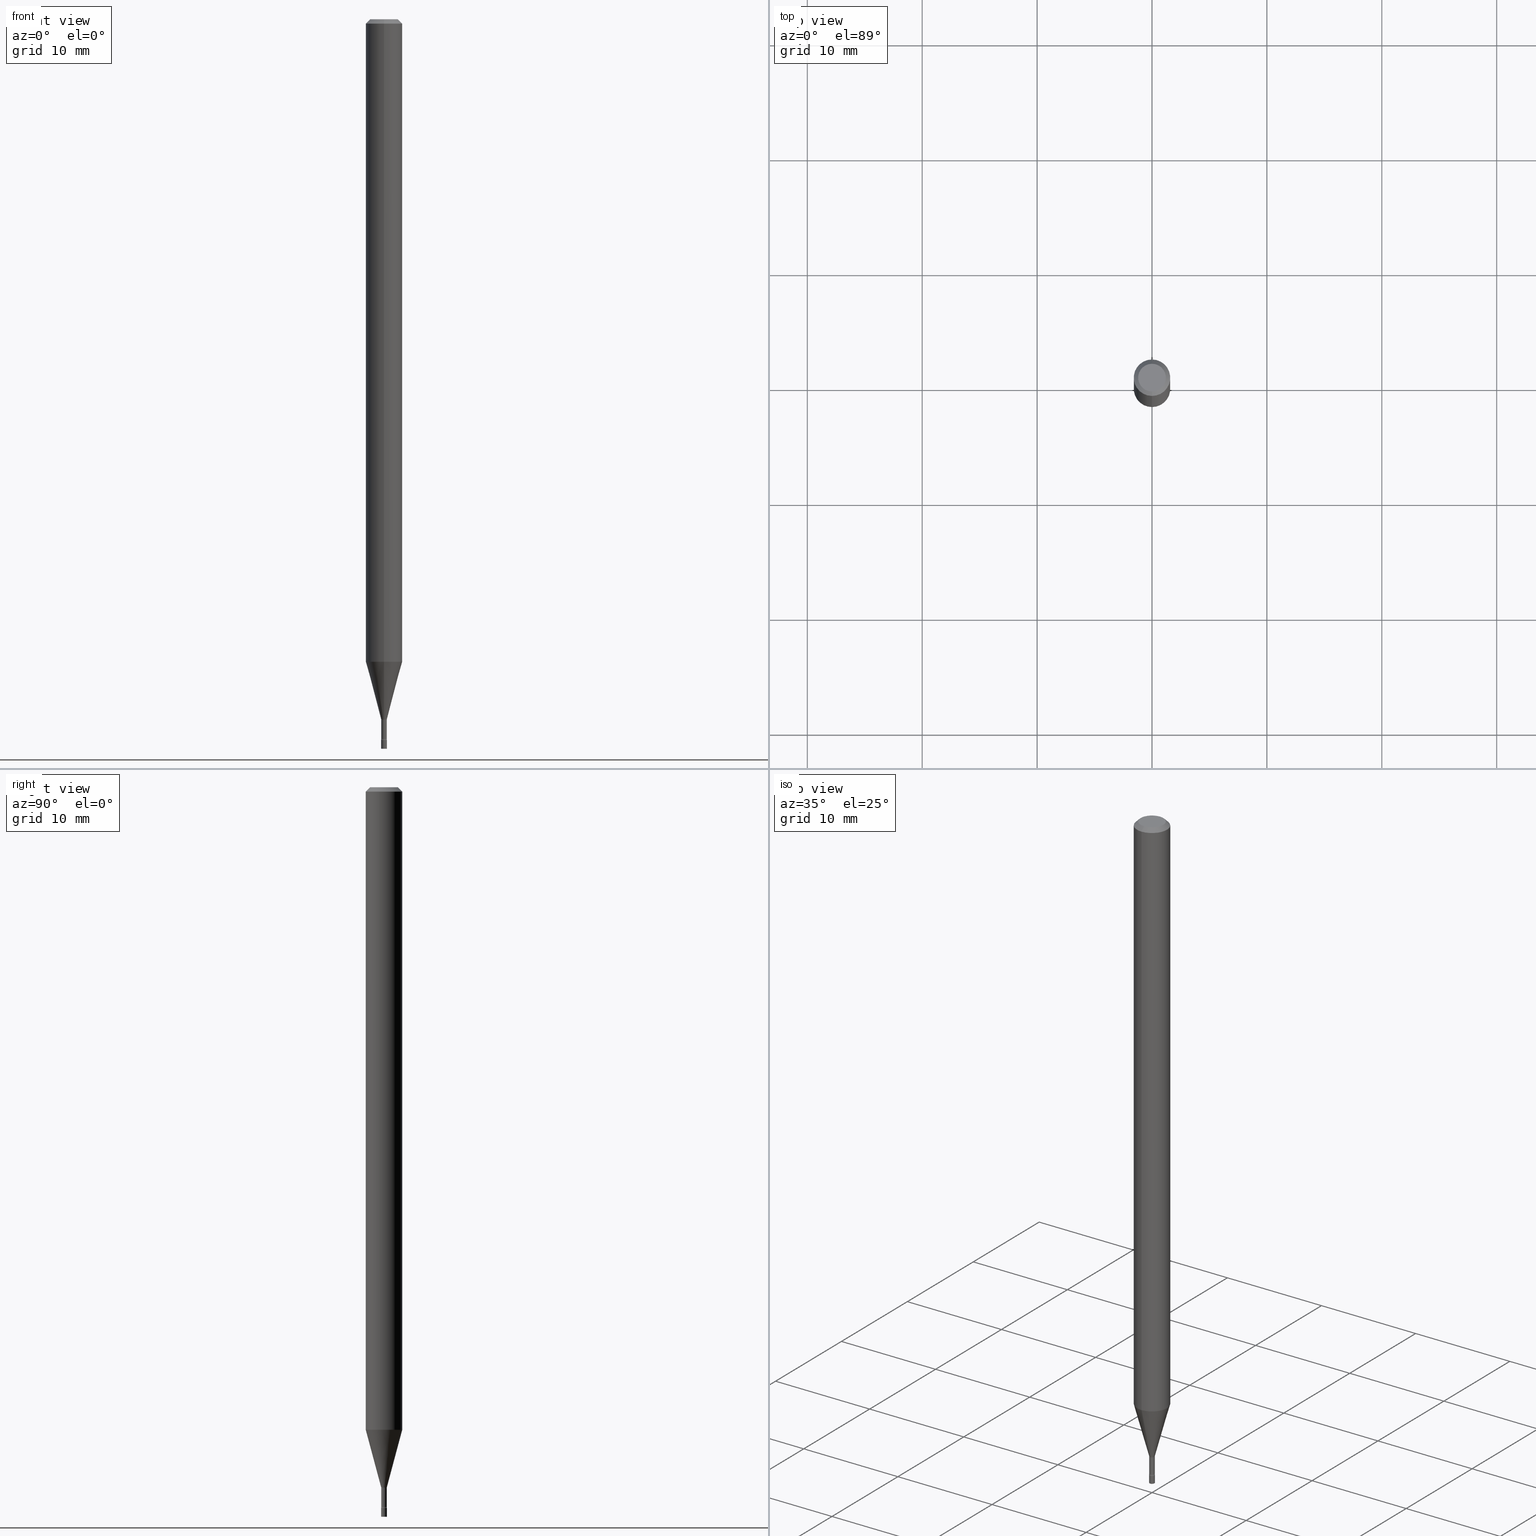
[diagram: canonical four-view strip — front | top / right | iso, engineering-drawing reading convention]
A machine part, canonical four-view strip (front | top / right | iso — engineering-drawing reading convention). The complete STEP part file that produces these views, byte-faithful:
ISO-10303-21;
HEADER;
FILE_DESCRIPTION (( 'STEP AP203' ),
    '1' );
FILE_NAME ('09614.STEP',
    '2024-03-08T23:59:17',
    ( '' ),
    ( '' ),
    'SwSTEP 2.0',
    'SolidWorks 2023',
    '' );
FILE_SCHEMA (( 'CONFIG_CONTROL_DESIGN' ));
ENDSEC;

DATA;
#1 = DIRECTION ( 'NONE',  ( -2.445536542724447659E-29, 3.491384336263527933E-15, 1.000000000000000000 ) ) ;
#2 = EDGE_LOOP ( 'NONE', ( #215, #450, #129, #425 ) ) ;
#3 = DIRECTION ( 'NONE',  ( -2.445536542724447659E-29, 3.491384336263527933E-15, 1.000000000000000000 ) ) ;
#4 = CIRCLE ( 'NONE', #375, 0.009400000000000024655 ) ;
#5 = VECTOR ( 'NONE', #43, 39.37007874015748143 ) ;
#6 = ORIENTED_EDGE ( 'NONE', *, *, #368, .F. ) ;
#7 = CARTESIAN_POINT ( 'NONE',  ( 5.864622845954269550E-29, -8.372662597651102146E-15, -2.398092501787273179 ) ) ;
#8 = DIRECTION ( 'NONE',  ( -2.445468806185136877E-29, 3.491481338843145188E-15, 1.000000000000000000 ) ) ;
#9 = DIRECTION ( 'NONE',  ( 1.000000000000000000, -6.982962677686265922E-15, 4.876176775795935793E-29 ) ) ;
#10 = AXIS2_PLACEMENT_3D ( 'NONE', #449, #369, #207 ) ;
#11 = PRODUCT_DEFINITION_FORMATION_WITH_SPECIFIED_SOURCE ( 'ANY', '', #178, .NOT_KNOWN. ) ;
#12 = FACE_OUTER_BOUND ( 'NONE', #158, .T. ) ;
#13 = VERTEX_POINT ( 'NONE', #192 ) ;
#14 = DIRECTION ( 'NONE',  ( -2.445536542724447659E-29, 3.491384336263527933E-15, 1.000000000000000000 ) ) ;
#15 = ADVANCED_FACE ( 'NONE', ( #357 ), #408, .T. ) ;
#16 = EDGE_LOOP ( 'NONE', ( #180, #119, #322, #117 ) ) ;
#17 = CARTESIAN_POINT ( 'NONE',  ( -0.01000000000000000021, -8.605276853449206598E-15, -2.500000000000000000 ) ) ;
#18 = EDGE_LOOP ( 'NONE', ( #342, #78, #388, #200 ) ) ;
#19 = VECTOR ( 'NONE', #38, 39.37007874015748143 ) ;
#20 = SECURITY_CLASSIFICATION ( '', '', #319 ) ;
#21 = DATE_AND_TIME ( #220, #206 ) ;
#22 = DIRECTION ( 'NONE',  ( -6.982962677686265922E-15, -1.000000000000000000, 4.370956789862821150E-15 ) ) ;
#23 = COORDINATED_UNIVERSAL_TIME_OFFSET ( 5, 0, .BEHIND. ) ;
#24 = DIRECTION ( 'NONE',  ( -6.982962677686265922E-15, -1.000000000000000000, 3.483106191921935554E-15 ) ) ;
#25 = CALENDAR_DATE ( 2024, 8, 3 ) ;
#26 = CARTESIAN_POINT ( 'NONE',  ( -6.920892941963881843E-17, -0.009911112605672353984, -2.398092501787273179 ) ) ;
#27 = VECTOR ( 'NONE', #311, 39.37007874015748143 ) ;
#28 = ADVANCED_FACE ( 'NONE', ( #31 ), #138, .F. ) ;
#29 = CARTESIAN_POINT ( 'NONE',  ( 5.874117117445537953E-29, -8.386217149051065553E-15, -2.401974787463811101 ) ) ;
#30 = DATE_AND_TIME ( #402, #240 ) ;
#31 = FACE_OUTER_BOUND ( 'NONE', #155, .T. ) ;
#32 = COORDINATED_UNIVERSAL_TIME_OFFSET ( 5, 0, .BEHIND. ) ;
#33 = DIRECTION ( 'NONE',  ( -2.445536542724447659E-29, 3.491384336263527933E-15, 1.000000000000000000 ) ) ;
#34 = VECTOR ( 'NONE', #337, 39.37007874015748143 ) ;
#35 = CARTESIAN_POINT ( 'NONE',  ( 0.01000000000000000021, -8.798532973884726663E-15, -2.500000000000000000 ) ) ;
#36 = ORIENTED_EDGE ( 'NONE', *, *, #134, .F. ) ;
#37 = DIRECTION ( 'NONE',  ( 1.000000000000000000, -6.982962677686235945E-15, 0.000000000000000000 ) ) ;
#38 = DIRECTION ( 'NONE',  ( -2.445536542724447659E-29, 3.491384336263527933E-15, 1.000000000000000000 ) ) ;
#39 = ORIENTED_EDGE ( 'NONE', *, *, #65, .F. ) ;
#40 = EDGE_CURVE ( 'NONE', #324, #367, #338, .T. ) ;
#41 = FACE_OUTER_BOUND ( 'NONE', #2, .T. ) ;
#42 = AXIS2_PLACEMENT_3D ( 'NONE', #221, #435, #363 ) ;
#43 = DIRECTION ( 'NONE',  ( -2.445468806185136877E-29, 3.491481338843145188E-15, 1.000000000000000000 ) ) ;
#44 = CARTESIAN_POINT ( 'NONE',  ( -6.563984917025098705E-17, -0.009400000000000012512, 3.281901276087720893E-17 ) ) ;
#45 = DIRECTION ( 'NONE',  ( -2.445536542724447659E-29, 3.491384336263527933E-15, 1.000000000000000000 ) ) ;
#46 = EDGE_LOOP ( 'NONE', ( #317, #385 ) ) ;
#47 = CONICAL_SURFACE ( 'NONE', #356, 0.06250000000000000000, 0.7853981633974483900 ) ;
#48 = CARTESIAN_POINT ( 'NONE',  ( 6.030204007049943435E-29, -8.609055496358607345E-15, -2.465800000000000214 ) ) ;
#49 = ORIENTED_EDGE ( 'NONE', *, *, #149, .T. ) ;
#50 = CARTESIAN_POINT ( 'NONE',  ( 0.01000000000000000021, -6.982962677686265724E-17, 4.876176775795935968E-31 ) ) ;
#51 = CC_DESIGN_DATE_AND_TIME_ASSIGNMENT ( #411, #246, ( #20 ) ) ;
#52 = ORIENTED_EDGE ( 'NONE', *, *, #427, .F. ) ;
#53 = EDGE_CURVE ( 'NONE', #104, #300, #63, .T. ) ;
#54 = COORDINATED_UNIVERSAL_TIME_OFFSET ( 5, 0, .BEHIND. ) ;
#55 = DIRECTION ( 'NONE',  ( -6.982962677686265922E-15, -1.000000000000000000, 3.491384336263527933E-15 ) ) ;
#56 = ADVANCED_FACE ( 'NONE', ( #265 ), #506, .T. ) ;
#57 = CONICAL_SURFACE ( 'NONE', #212, 0.009911112605663982209, 0.2617993877991502960 ) ;
#58 = FACE_OUTER_BOUND ( 'NONE', #261, .T. ) ;
#59 = APPROVAL_ROLE ( '' ) ;
#60 = CARTESIAN_POINT ( 'NONE',  ( -4.364351673553912750E-16, -0.06250000000000005551, -0.01499999999999981209 ) ) ;
#61 = DIRECTION ( 'NONE',  ( 2.445536542724447659E-29, -3.491384336263527933E-15, -1.000000000000000000 ) ) ;
#62 = DESIGN_CONTEXT ( 'detailed design', #72, 'design' ) ;
#63 = CIRCLE ( 'NONE', #407, 0.06250000000000000000 ) ;
#64 = PERSON_AND_ORGANIZATION ( #328, #223 ) ;
#65 = EDGE_CURVE ( 'NONE', #13, #87, #71, .T. ) ;
#66 = LINE ( 'NONE', #26, #198 ) ;
#67 = CARTESIAN_POINT ( 'NONE',  ( -6.920892941963881843E-17, -0.009911112605672353984, -2.398092501787273179 ) ) ;
#68 = EDGE_CURVE ( 'NONE', #258, #484, #151, .T. ) ;
#69 = FACE_OUTER_BOUND ( 'NONE', #329, .T. ) ;
#70 = ORIENTED_EDGE ( 'NONE', *, *, #350, .T. ) ;
#71 = CIRCLE ( 'NONE', #168, 0.009400000000000002104 ) ;
#72 = APPLICATION_CONTEXT ( 'configuration controlled 3d designs of mechanical parts and assemblies' ) ;
#73 = CIRCLE ( 'NONE', #455, 0.01000000000000000021 ) ;
#74 = CYLINDRICAL_SURFACE ( 'NONE', #478, 0.009400000000000012512 ) ;
#75 = VERTEX_POINT ( 'NONE', #60 ) ;
#76 = CARTESIAN_POINT ( 'NONE',  ( 4.440892098501167517E-16, 0.06249999999999995143, -0.01500000000000024751 ) ) ;
#77 = EDGE_CURVE ( 'NONE', #300, #75, #278, .T. ) ;
#78 = ORIENTED_EDGE ( 'NONE', *, *, #389, .T. ) ;
#79 = ADVANCED_FACE ( 'NONE', ( #109 ), #162, .F. ) ;
#80 = DIRECTION ( 'NONE',  ( -2.445536542724447659E-29, 3.491384336263527933E-15, 1.000000000000000000 ) ) ;
#81 = ORIENTED_EDGE ( 'NONE', *, *, #174, .T. ) ;
#82 = DIRECTION ( 'NONE',  ( 1.000000000000000000, -6.982962677686265922E-15, 4.876176775795935793E-29 ) ) ;
#83 = AXIS2_PLACEMENT_3D ( 'NONE', #475, #514, #234 ) ;
#84 = CARTESIAN_POINT ( 'NONE',  ( 0.000000000000000000, 0.000000000000000000, 0.000000000000000000 ) ) ;
#85 = CARTESIAN_POINT ( 'NONE',  ( 0.000000000000000000, 0.000000000000000000, 0.000000000000000000 ) ) ;
#86 = CARTESIAN_POINT ( 'NONE',  ( 7.105427357607040490E-17, 0.009999999999991376898, -2.470000000000000195 ) ) ;
#87 = VERTEX_POINT ( 'NONE', #352 ) ;
#88 = CIRCLE ( 'NONE', #321, 0.06250000000000000000 ) ;
#89 = TOROIDAL_SURFACE ( 'NONE', #432, 0.02440000000000002583, 0.01500000000000000291 ) ;
#90 = DIRECTION ( 'NONE',  ( -2.445536542724447659E-29, 3.491384336263527933E-15, 1.000000000000000000 ) ) ;
#91 = ORIENTED_EDGE ( 'NONE', *, *, #194, .F. ) ;
#92 = EDGE_CURVE ( 'NONE', #258, #237, #225, .T. ) ;
#93 = PERSON_AND_ORGANIZATION ( #328, #223 ) ;
#94 = VERTEX_POINT ( 'NONE', #268 ) ;
#95 = UNCERTAINTY_MEASURE_WITH_UNIT (LENGTH_MEASURE( 1.000000000000000082E-05 ), #473, 'distance_accuracy_value', 'NONE');
#96 = PERSON_AND_ORGANIZATION_ROLE ( 'design_supplier' ) ;
#97 = DIRECTION ( 'NONE',  ( -2.445536542724447659E-29, 3.491384336263527933E-15, 1.000000000000000000 ) ) ;
#98 = MANIFOLD_SOLID_BREP ( 'Body-Move/Copy2[1]', #494 ) ;
#99 = AXIS2_PLACEMENT_3D ( 'NONE', #203, #33, #412 ) ;
#100 = CC_DESIGN_APPROVAL ( #387, ( #11 ) ) ;
#101 = LENGTH_MEASURE_WITH_UNIT ( LENGTH_MEASURE( 0.02539999999999999897 ), #398 );
#102 = LINE ( 'NONE', #274, #205 ) ;
#103 = CARTESIAN_POINT ( 'NONE',  ( 0.000000000000000000, 0.000000000000000000, 0.000000000000000000 ) ) ;
#104 = VERTEX_POINT ( 'NONE', #397 ) ;
#105 = ADVANCED_FACE ( 'NONE', ( #58 ), #146, .T. ) ;
#106 = APPROVAL_ROLE ( '' ) ;
#107 = DIRECTION ( 'NONE',  ( -2.445536542724447659E-29, 3.491384336263527933E-15, 1.000000000000000000 ) ) ;
#108 = AXIS2_PLACEMENT_3D ( 'NONE', #283, #120, #116 ) ;
#109 = FACE_OUTER_BOUND ( 'NONE', #242, .T. ) ;
#110 = APPROVAL_STATUS ( 'not_yet_approved' ) ;
#111 = CARTESIAN_POINT ( 'NONE',  ( 7.042269065260763166E-17, 0.009911112605655608698, -2.398092501787273179 ) ) ;
#112 = EDGE_CURVE ( 'NONE', #280, #300, #66, .T. ) ;
#113 = DIRECTION ( 'NONE',  ( -6.982962677686264344E-15, -1.000000000000000000, 0.000000000000000000 ) ) ;
#114 = CC_DESIGN_PERSON_AND_ORGANIZATION_ASSIGNMENT ( #353, #96, ( #11 ) ) ;
#115 = VECTOR ( 'NONE', #128, 39.37007874015748143 ) ;
#116 = DIRECTION ( 'NONE',  ( -6.982962677686265922E-15, -1.000000000000000000, 3.491384336263527933E-15 ) ) ;
#117 = ORIENTED_EDGE ( 'NONE', *, *, #308, .F. ) ;
#118 = DIRECTION ( 'NONE',  ( -6.982962677686266711E-15, -1.000000000000000000, 0.000000000000000000 ) ) ;
#119 = ORIENTED_EDGE ( 'NONE', *, *, #416, .T. ) ;
#120 = DIRECTION ( 'NONE',  ( -2.445536542724447659E-29, 3.491384336263527933E-15, 1.000000000000000000 ) ) ;
#121 = DIRECTION ( 'NONE',  ( -2.445536542724447659E-29, 3.491384336263527933E-15, 1.000000000000000000 ) ) ;
#122 = CIRCLE ( 'NONE', #461, 0.009911112605663982209 ) ;
#123 = AXIS2_PLACEMENT_3D ( 'NONE', #84, #424, #9 ) ;
#124 = CARTESIAN_POINT ( 'NONE',  ( -0.01000000000000000021, 7.105427357601002007E-17, -4.918935090254906272E-31 ) ) ;
#125 = CC_DESIGN_PERSON_AND_ORGANIZATION_ASSIGNMENT ( #229, #269, ( #178 ) ) ;
#126 = LINE ( 'NONE', #44, #115 ) ;
#127 = ORIENTED_EDGE ( 'NONE', *, *, #177, .F. ) ;
#128 = DIRECTION ( 'NONE',  ( -2.445536542724447659E-29, 3.491384336263527933E-15, 1.000000000000000000 ) ) ;
#129 = ORIENTED_EDGE ( 'NONE', *, *, #250, .F. ) ;
#130 = CIRCLE ( 'NONE', #312, 0.01500000000000000638 ) ;
#131 = ADVANCED_FACE ( 'NONE', ( #504 ), #148, .T. ) ;
#132 = ADVANCED_BREP_SHAPE_REPRESENTATION ( '09614', ( #98, #289, #339 ), #170 ) ;
#133 = CIRCLE ( 'NONE', #347, 0.009400000000000002104 ) ;
#134 = EDGE_CURVE ( 'NONE', #237, #75, #516, .T. ) ;
#135 = APPLICATION_PROTOCOL_DEFINITION ( 'international standard', 'config_control_design', 1994, #72 ) ;
#136 = ORIENTED_EDGE ( 'NONE', *, *, #259, .T. ) ;
#137 = APPROVAL_DATE_TIME ( #21, #387 ) ;
#138 = PLANE ( 'NONE',  #42 ) ;
#139 = PERSON_AND_ORGANIZATION ( #328, #223 ) ;
#140 = DIRECTION ( 'NONE',  ( -6.982962677686265922E-15, -1.000000000000000000, 0.000000000000000000 ) ) ;
#141 = AXIS2_PLACEMENT_3D ( 'NONE', #468, #437, #320 ) ;
#142 = APPROVAL_PERSON_ORGANIZATION ( #93, #387, #59 ) ;
#143 = DIRECTION ( 'NONE',  ( -6.982962677686265922E-15, -1.000000000000000000, 0.000000000000000000 ) ) ;
#144 = ORIENTED_EDGE ( 'NONE', *, *, #92, .T. ) ;
#145 = DIRECTION ( 'NONE',  ( -2.445536542724447659E-29, 3.491384336263527933E-15, 1.000000000000000000 ) ) ;
#146 = PLANE ( 'NONE',  #83 ) ;
#147 = ORIENTED_EDGE ( 'NONE', *, *, #92, .F. ) ;
#148 = PLANE ( 'NONE',  #141 ) ;
#149 = EDGE_CURVE ( 'NONE', #484, #75, #102, .T. ) ;
#150 = EDGE_LOOP ( 'NONE', ( #306, #373, #293, #503 ) ) ;
#151 = CIRCLE ( 'NONE', #399, 0.04749999999999999362 ) ;
#152 = EDGE_CURVE ( 'NONE', #204, #87, #181, .T. ) ;
#153 = COORDINATED_UNIVERSAL_TIME_OFFSET ( 5, 0, .BEHIND. ) ;
#154 = DIRECTION ( 'NONE',  ( 6.982962677686265922E-15, 1.000000000000000000, -3.483106191921935554E-15 ) ) ;
#155 = EDGE_LOOP ( 'NONE', ( #52, #235 ) ) ;
#156 = PERSON_AND_ORGANIZATION_ROLE ( 'classification_officer' ) ;
#157 = DIRECTION ( 'NONE',  ( 1.000000000000000000, -6.982962677686235945E-15, 0.000000000000000000 ) ) ;
#158 = EDGE_LOOP ( 'NONE', ( #515, #376, #500, #6 ) ) ;
#159 = CALENDAR_DATE ( 2024, 8, 3 ) ;
#160 = CARTESIAN_POINT ( 'NONE',  ( 2.572559502513620993E-16, 0.009911112605655608698, -2.398092501787273179 ) ) ;
#161 = VERTEX_POINT ( 'NONE', #243 ) ;
#162 = TOROIDAL_SURFACE ( 'NONE', #191, 0.02439999999999999808, 0.01500000000000002200 ) ;
#163 = LOCAL_TIME ( 18, 59, 17.00000000000000000, #153 ) ;
#164 = DIRECTION ( 'NONE',  ( 1.000000000000000000, -7.105427357601001070E-15, 4.926314320603096360E-29 ) ) ;
#165 = ORIENTED_EDGE ( 'NONE', *, *, #174, .F. ) ;
#166 = DIRECTION ( 'NONE',  ( -2.445536542724447659E-29, 3.491384336263527933E-15, 1.000000000000000000 ) ) ;
#167 = CARTESIAN_POINT ( 'NONE',  ( -3.773273898774340269E-16, -0.04749999999999999362, 1.369222374221167053E-16 ) ) ;
#168 = AXIS2_PLACEMENT_3D ( 'NONE', #29, #228, #140 ) ;
#169 = CARTESIAN_POINT ( 'NONE',  ( 6.040307951277287977E-29, -8.623958906942569995E-15, -2.470000000000000195 ) ) ;
#170 =( GEOMETRIC_REPRESENTATION_CONTEXT ( 3 ) GLOBAL_UNCERTAINTY_ASSIGNED_CONTEXT ( ( #95 ) ) GLOBAL_UNIT_ASSIGNED_CONTEXT ( ( #473, #467, #362 ) ) REPRESENTATION_CONTEXT ( 'NONE', 'WORKASPACE' ) );
#171 = AXIS2_PLACEMENT_3D ( 'NONE', #175, #343, #418 ) ;
#172 = FACE_OUTER_BOUND ( 'NONE', #16, .T. ) ;
#173 = ORIENTED_EDGE ( 'NONE', *, *, #149, .F. ) ;
#174 = EDGE_CURVE ( 'NONE', #484, #258, #301, .T. ) ;
#175 = CARTESIAN_POINT ( 'NONE',  ( 6.040475260529386236E-29, -8.623719310570914180E-15, -2.470000000000000195 ) ) ;
#176 = ORIENTED_EDGE ( 'NONE', *, *, #318, .T. ) ;
#177 = EDGE_CURVE ( 'NONE', #204, #280, #488, .T. ) ;
#178 = PRODUCT ( '09614', '09614', '', ( #188 ) ) ;
#179 = CARTESIAN_POINT ( 'NONE',  ( -6.563984917019076245E-17, -0.009400000000008634088, -2.465800000000000214 ) ) ;
#180 = ORIENTED_EDGE ( 'NONE', *, *, #189, .T. ) ;
#181 = CIRCLE ( 'NONE', #238, 0.01500000000000001853 ) ;
#182 = AXIS2_PLACEMENT_3D ( 'NONE', #463, #419, #496 ) ;
#183 = PRODUCT_RELATED_PRODUCT_CATEGORY ( 'detail', '', ( #178 ) ) ;
#184 = DIRECTION ( 'NONE',  ( -6.982962677686266711E-15, -1.000000000000000000, 3.491384336263528328E-15 ) ) ;
#185 = DATE_TIME_ROLE ( 'creation_date' ) ;
#186 = DIRECTION ( 'NONE',  ( -6.982962677686265922E-15, -1.000000000000000000, 3.491384336263527933E-15 ) ) ;
#187 = EDGE_CURVE ( 'NONE', #490, #367, #310, .T. ) ;
#188 = MECHANICAL_CONTEXT ( 'NONE', #513, 'mechanical' ) ;
#189 = EDGE_CURVE ( 'NONE', #245, #466, #331, .T. ) ;
#190 = CARTESIAN_POINT ( 'NONE',  ( 6.040475260529386236E-29, -8.623719310570914180E-15, -2.470000000000000195 ) ) ;
#191 = AXIS2_PLACEMENT_3D ( 'NONE', #309, #270, #55 ) ;
#192 = CARTESIAN_POINT ( 'NONE',  ( -6.563984917019216761E-17, -0.009400000000008387757, -2.401974787463811101 ) ) ;
#193 = ORIENTED_EDGE ( 'NONE', *, *, #294, .F. ) ;
#194 = EDGE_CURVE ( 'NONE', #104, #237, #334, .T. ) ;
#195 = DIRECTION ( 'NONE',  ( 4.937700262164548042E-15, 0.7071067811865451302, -0.7071067811865499042 ) ) ;
#196 = ORIENTED_EDGE ( 'NONE', *, *, #314, .T. ) ;
#197 = CARTESIAN_POINT ( 'NONE',  ( 3.840629472727447874E-16, 0.04749999999999999362, -1.947592745229184365E-16 ) ) ;
#198 = VECTOR ( 'NONE', #393, 39.37007874015748143 ) ;
#199 = CARTESIAN_POINT ( 'NONE',  ( 5.384651084527414433E-29, -7.687428146879962724E-15, -2.201828102118093433 ) ) ;
#200 = ORIENTED_EDGE ( 'NONE', *, *, #520, .F. ) ;
#201 = FACE_OUTER_BOUND ( 'NONE', #150, .T. ) ;
#202 = ORIENTED_EDGE ( 'NONE', *, *, #405, .T. ) ;
#203 = CARTESIAN_POINT ( 'NONE',  ( 6.030036982291310238E-29, -8.609294685319429365E-15, -2.465800000000000214 ) ) ;
#204 = VERTEX_POINT ( 'NONE', #160 ) ;
#205 = VECTOR ( 'NONE', #479, 39.37007874015748143 ) ;
#206 = LOCAL_TIME ( 18, 59, 17.00000000000000000, #54 ) ;
#207 = DIRECTION ( 'NONE',  ( -6.982962677686264344E-15, -1.000000000000000000, 0.000000000000000000 ) ) ;
#208 = FACE_OUTER_BOUND ( 'NONE', #442, .T. ) ;
#209 = ADVANCED_FACE ( 'NONE', ( #69 ), #345, .F. ) ;
#210 = DIRECTION ( 'NONE',  ( -2.445468806185136597E-29, 3.491481338843145583E-15, 1.000000000000000000 ) ) ;
#211 = CC_DESIGN_PERSON_AND_ORGANIZATION_ASSIGNMENT ( #139, #307, ( #11 ) ) ;
#212 = AXIS2_PLACEMENT_3D ( 'NONE', #330, #487, #113 ) ;
#213 = DIRECTION ( 'NONE',  ( -6.982962677686265922E-15, -1.000000000000000000, 0.000000000000000000 ) ) ;
#214 = LOCAL_TIME ( 18, 59, 17.00000000000000000, #395 ) ;
#215 = ORIENTED_EDGE ( 'NONE', *, *, #271, .T. ) ;
#216 = CARTESIAN_POINT ( 'NONE',  ( 3.668304814086678845E-31, -5.237076504395302352E-17, -0.01500000000000003067 ) ) ;
#217 = ORIENTED_EDGE ( 'NONE', *, *, #187, .F. ) ;
#218 = DIRECTION ( 'NONE',  ( 2.445536542724447098E-29, -3.491384336263527933E-15, -1.000000000000000000 ) ) ;
#219 = ORIENTED_EDGE ( 'NONE', *, *, #77, .T. ) ;
#220 = CALENDAR_DATE ( 2024, 8, 3 ) ;
#221 = CARTESIAN_POINT ( 'NONE',  ( 6.982962677692306673E-17, 0.009999999999991375163, -2.470000000000000195 ) ) ;
#222 = AXIS2_PLACEMENT_3D ( 'NONE', #230, #107, #24 ) ;
#223 = ORGANIZATION ( 'UNSPECIFIED', 'UNSPECIFIED', '' ) ;
#224 = DIRECTION ( 'NONE',  ( 1.000000000000000000, 0.000000000000000000, 0.000000000000000000 ) ) ;
#225 = LINE ( 'NONE', #472, #439 ) ;
#226 = CC_DESIGN_PERSON_AND_ORGANIZATION_ASSIGNMENT ( #64, #351, ( #420 ) ) ;
#227 = DIRECTION ( 'NONE',  ( -6.982962677686265922E-15, -1.000000000000000000, 3.491384336263527933E-15 ) ) ;
#228 = DIRECTION ( 'NONE',  ( -2.445536542724447659E-29, 3.491384336263527933E-15, 1.000000000000000000 ) ) ;
#229 = PERSON_AND_ORGANIZATION ( #328, #223 ) ;
#230 = CARTESIAN_POINT ( 'NONE',  ( 3.668304814086678845E-31, -5.237076504395302352E-17, -0.01500000000000003067 ) ) ;
#231 = APPROVAL_PERSON_ORGANIZATION ( #355, #327, #106 ) ;
#232 = ADVANCED_FACE ( 'NONE', ( #201 ), #57, .T. ) ;
#233 = DIRECTION ( 'NONE',  ( -2.445536542724447659E-29, 3.491384336263527933E-15, 1.000000000000000000 ) ) ;
#234 = DIRECTION ( 'NONE',  ( 1.000000000000000000, -6.982962677686265922E-15, 4.876176775795935793E-29 ) ) ;
#235 = ORIENTED_EDGE ( 'NONE', *, *, #40, .F. ) ;
#236 = FACE_OUTER_BOUND ( 'NONE', #428, .T. ) ;
#237 = VERTEX_POINT ( 'NONE', #76 ) ;
#238 = AXIS2_PLACEMENT_3D ( 'NONE', #440, #164, #445 ) ;
#239 = ORIENTED_EDGE ( 'NONE', *, *, #250, .T. ) ;
#240 = LOCAL_TIME ( 18, 59, 17.00000000000000000, #23 ) ;
#241 = DIRECTION ( 'NONE',  ( -6.982962677686265922E-15, -1.000000000000000000, 3.491384336263528328E-15 ) ) ;
#242 = EDGE_LOOP ( 'NONE', ( #127, #344, #262, #348 ) ) ;
#243 = CARTESIAN_POINT ( 'NONE',  ( 6.892264536879016655E-17, 0.009399999999991416957, -2.465800000000000214 ) ) ;
#244 = DIMENSIONAL_EXPONENTS ( 1.000000000000000000, 0.000000000000000000, 0.000000000000000000, 0.000000000000000000, 0.000000000000000000, 0.000000000000000000, 0.000000000000000000 ) ;
#245 = VERTEX_POINT ( 'NONE', #35 ) ;
#246 = DATE_TIME_ROLE ( 'classification_date' ) ;
#247 = CARTESIAN_POINT ( 'NONE',  ( 7.072129387646011672E-46, -1.009656626948158031E-31, -2.891851855040085948E-17 ) ) ;
#248 = EDGE_LOOP ( 'NONE', ( #196, #422, #39, #193 ) ) ;
#249 = AXIS2_PLACEMENT_3D ( 'NONE', #190, #510, #143 ) ;
#250 = EDGE_CURVE ( 'NONE', #300, #104, #88, .T. ) ;
#251 = CYLINDRICAL_SURFACE ( 'NONE', #182, 0.009400000000000012512 ) ;
#252 = ADVANCED_FACE ( 'NONE', ( #483 ), #392, .F. ) ;
#253 = DIRECTION ( 'NONE',  ( 1.000000000000000000, -6.982962677686235945E-15, 0.000000000000000000 ) ) ;
#254 = CARTESIAN_POINT ( 'NONE',  ( 6.679101716144950638E-17, 0.009400000000000012512, -3.281901276087720893E-17 ) ) ;
#255 = AXIS2_PLACEMENT_3D ( 'NONE', #247, #1, #279 ) ;
#256 = CYLINDRICAL_SURFACE ( 'NONE', #123, 0.01000000000000000021 ) ;
#257 = CC_DESIGN_APPROVAL ( #482, ( #20 ) ) ;
#258 = VERTEX_POINT ( 'NONE', #197 ) ;
#259 = EDGE_CURVE ( 'NONE', #280, #13, #446, .T. ) ;
#260 = DIRECTION ( 'NONE',  ( -6.982962677686265922E-15, -1.000000000000000000, 3.483106191921935554E-15 ) ) ;
#261 = EDGE_LOOP ( 'NONE', ( #70, #391 ) ) ;
#262 = ORIENTED_EDGE ( 'NONE', *, *, #520, .T. ) ;
#263 = ADVANCED_FACE ( 'NONE', ( #413 ), #74, .T. ) ;
#264 = CLOSED_SHELL ( 'NONE', ( #79, #381, #501, #282, #56, #272, #232, #492, #15, #436, #28, #209, #263, #252 ) ) ;
#265 = FACE_OUTER_BOUND ( 'NONE', #498, .T. ) ;
#266 = EDGE_CURVE ( 'NONE', #466, #245, #284, .T. ) ;
#267 = DIRECTION ( 'NONE',  ( -6.982962677686265922E-15, -1.000000000000000000, 3.491384336263527933E-15 ) ) ;
#268 = CARTESIAN_POINT ( 'NONE',  ( 0.01000000000000000021, -8.693788533719433294E-15, -2.470000000000000195 ) ) ;
#269 = PERSON_AND_ORGANIZATION_ROLE ( 'design_owner' ) ;
#270 = DIRECTION ( 'NONE',  ( -2.445536542724447659E-29, 3.491384336263527933E-15, 1.000000000000000000 ) ) ;
#271 = EDGE_CURVE ( 'NONE', #280, #204, #122, .T. ) ;
#272 = ADVANCED_FACE ( 'NONE', ( #41 ), #431, .T. ) ;
#273 = CARTESIAN_POINT ( 'NONE',  ( 5.874117117445537953E-29, -8.386217149051065553E-15, -2.401974787463811101 ) ) ;
#274 = CARTESIAN_POINT ( 'NONE',  ( -4.287811248607203282E-16, -0.06250000000000005551, -0.01499999999999981209 ) ) ;
#275 = AXIS2_PLACEMENT_3D ( 'NONE', #403, #61, #354 ) ;
#276 = AXIS2_PLACEMENT_3D ( 'NONE', #216, #14, #260 ) ;
#277 = SHAPE_DEFINITION_REPRESENTATION ( #305, #132 ) ;
#278 = LINE ( 'NONE', #433, #27 ) ;
#279 = DIRECTION ( 'NONE',  ( -6.982962677686266711E-15, -1.000000000000000000, 3.491384336263528328E-15 ) ) ;
#280 = VERTEX_POINT ( 'NONE', #67 ) ;
#281 = DATE_AND_TIME ( #159, #508 ) ;
#282 = ADVANCED_FACE ( 'NONE', ( #236 ), #47, .T. ) ;
#283 = CARTESIAN_POINT ( 'NONE',  ( 5.873954415985923093E-29, -8.386450146801627753E-15, -2.401974787463811101 ) ) ;
#284 = CIRCLE ( 'NONE', #366, 0.01000000000000000021 ) ;
#285 = ORIENTED_EDGE ( 'NONE', *, *, #187, .T. ) ;
#286 = AXIS2_PLACEMENT_3D ( 'NONE', #169, #210, #253 ) ;
#287 = APPROVAL_ROLE ( '' ) ;
#288 = CARTESIAN_POINT ( 'NONE',  ( 4.440892098500625669E-16, 0.06250000000000000000, -2.182115210164704958E-16 ) ) ;
#289 = MANIFOLD_SOLID_BREP ( 'Body-Move/Copy2[2]', #264 ) ;
#290 = ORIENTED_EDGE ( 'NONE', *, *, #389, .F. ) ;
#291 = DIRECTION ( 'NONE',  ( -2.445468806185136597E-29, 3.491481338843145583E-15, 1.000000000000000000 ) ) ;
#292 = EDGE_CURVE ( 'NONE', #204, #104, #323, .T. ) ;
#293 = ORIENTED_EDGE ( 'NONE', *, *, #112, .T. ) ;
#294 = EDGE_CURVE ( 'NONE', #490, #13, #126, .T. ) ;
#295 = CYLINDRICAL_SURFACE ( 'NONE', #441, 0.06250000000000000000 ) ;
#296 = AXIS2_PLACEMENT_3D ( 'NONE', #336, #406, #118 ) ;
#297 = CARTESIAN_POINT ( 'NONE',  ( 6.040307951277287977E-29, -8.623958906942569995E-15, -2.470000000000000195 ) ) ;
#298 = CARTESIAN_POINT ( 'NONE',  ( 3.316907271900976096E-16, 0.04749999999999999362, -1.803000152477179914E-16 ) ) ;
#299 = DIRECTION ( 'NONE',  ( -6.982962677686265922E-15, -1.000000000000000000, 0.000000000000000000 ) ) ;
#300 = VERTEX_POINT ( 'NONE', #493 ) ;
#301 = CIRCLE ( 'NONE', #255, 0.04749999999999999362 ) ;
#302 = CARTESIAN_POINT ( 'NONE',  ( 1.733724275255249028E-16, 0.02439999999999141814, -2.465800000000000214 ) ) ;
#303 = ORIENTED_EDGE ( 'NONE', *, *, #318, .F. ) ;
#304 = FACE_OUTER_BOUND ( 'NONE', #401, .T. ) ;
#305 = PRODUCT_DEFINITION_SHAPE ( 'NONE', 'NONE',  #420 ) ;
#306 = ORIENTED_EDGE ( 'NONE', *, *, #292, .F. ) ;
#307 = PERSON_AND_ORGANIZATION_ROLE ( 'creator' ) ;
#308 = EDGE_CURVE ( 'NONE', #245, #94, #384, .T. ) ;
#309 = CARTESIAN_POINT ( 'NONE',  ( 5.873954415985923093E-29, -8.386450146801627753E-15, -2.401974787463811101 ) ) ;
#310 = CIRCLE ( 'NONE', #296, 0.01499999999999999771 ) ;
#311 = DIRECTION ( 'NONE',  ( -2.445536542724447659E-29, 3.491384336263527933E-15, 1.000000000000000000 ) ) ;
#312 = AXIS2_PLACEMENT_3D ( 'NONE', #302, #499, #459 ) ;
#313 = CARTESIAN_POINT ( 'NONE',  ( 0.000000000000000000, 0.000000000000000000, 0.000000000000000000 ) ) ;
#314 = EDGE_CURVE ( 'NONE', #490, #161, #4, .T. ) ;
#315 = DIRECTION ( 'NONE',  ( -2.445536542724447659E-29, 3.491384336263527933E-15, 1.000000000000000000 ) ) ;
#316 = DIRECTION ( 'NONE',  ( -2.445536542724447659E-29, 3.491384336263527933E-15, 1.000000000000000000 ) ) ;
#317 = ORIENTED_EDGE ( 'NONE', *, *, #189, .F. ) ;
#318 = EDGE_CURVE ( 'NONE', #161, #324, #130, .T. ) ;
#319 = SECURITY_CLASSIFICATION_LEVEL ( 'unclassified' ) ;
#320 = DIRECTION ( 'NONE',  ( -1.000000000000000000, 6.982962677686265922E-15, -4.876176775795935793E-29 ) ) ;
#321 = AXIS2_PLACEMENT_3D ( 'NONE', #199, #485, #451 ) ;
#322 = ORIENTED_EDGE ( 'NONE', *, *, #350, .F. ) ;
#323 = LINE ( 'NONE', #111, #34 ) ;
#324 = VERTEX_POINT ( 'NONE', #86 ) ;
#325 = ADVANCED_FACE ( 'NONE', ( #12 ), #340, .T. ) ;
#326 = PERSON_AND_ORGANIZATION ( #328, #223 ) ;
#327 = APPROVAL ( #474, 'UNSPECIFIED' ) ;
#328 = PERSON ( 'UNSPECIFIED', 'UNSPECIFIED', 'UNSPECIFIED', ('UNSPECIFIED'), ('UNSPECIFIED'), ('UNSPECIFIED') ) ;
#329 = EDGE_LOOP ( 'NONE', ( #303, #410, #285, #512 ) ) ;
#330 = CARTESIAN_POINT ( 'NONE',  ( 5.864622845954269550E-29, -8.372662597651102146E-15, -2.398092501787273179 ) ) ;
#331 = CIRCLE ( 'NONE', #454, 0.01000000000000000021 ) ;
#332 = ORIENTED_EDGE ( 'NONE', *, *, #68, .F. ) ;
#333 = CIRCLE ( 'NONE', #447, 0.009400000000000024655 ) ;
#334 = LINE ( 'NONE', #288, #19 ) ;
#335 = VERTEX_POINT ( 'NONE', #380 ) ;
#336 = CARTESIAN_POINT ( 'NONE',  ( -1.703842893354847853E-16, -0.02440000000000863700, -2.465800000000000214 ) ) ;
#337 = DIRECTION ( 'NONE',  ( 1.839019923739601104E-15, 0.2588190451025250693, 0.9659258262890670910 ) ) ;
#338 = CIRCLE ( 'NONE', #249, 0.01000000000000000021 ) ;
#339 = AXIS2_PLACEMENT_3D ( 'NONE', #313, #511, #224 ) ;
#340 = CYLINDRICAL_SURFACE ( 'NONE', #471, 0.01000000000000000021 ) ;
#341 = DIRECTION ( 'NONE',  ( 1.000000000000000000, -6.982962677686235945E-15, 0.000000000000000000 ) ) ;
#342 = ORIENTED_EDGE ( 'NONE', *, *, #457, .F. ) ;
#343 = DIRECTION ( 'NONE',  ( -2.445536542724447659E-29, 3.491384336263527933E-15, 1.000000000000000000 ) ) ;
#344 = ORIENTED_EDGE ( 'NONE', *, *, #152, .T. ) ;
#345 = TOROIDAL_SURFACE ( 'NONE', #99, 0.02440000000000002583, 0.01500000000000000291 ) ;
#346 = FACE_OUTER_BOUND ( 'NONE', #486, .T. ) ;
#347 = AXIS2_PLACEMENT_3D ( 'NONE', #273, #465, #470 ) ;
#348 = ORIENTED_EDGE ( 'NONE', *, *, #259, .F. ) ;
#349 = ADVANCED_FACE ( 'NONE', ( #172 ), #256, .T. ) ;
#350 = EDGE_CURVE ( 'NONE', #94, #335, #73, .T. ) ;
#351 = PERSON_AND_ORGANIZATION_ROLE ( 'creator' ) ;
#352 = CARTESIAN_POINT ( 'NONE',  ( 6.679101716150978028E-17, 0.009399999999991616451, -2.401974787463811101 ) ) ;
#353 = PERSON_AND_ORGANIZATION ( #328, #223 ) ;
#354 = DIRECTION ( 'NONE',  ( 6.982962677686265922E-15, 1.000000000000000000, -3.483106191921935554E-15 ) ) ;
#355 = PERSON_AND_ORGANIZATION ( #328, #223 ) ;
#356 = AXIS2_PLACEMENT_3D ( 'NONE', #404, #517, #154 ) ;
#357 = FACE_OUTER_BOUND ( 'NONE', #460, .T. ) ;
#358 = VECTOR ( 'NONE', #45, 39.37007874015748143 ) ;
#359 = ORIENTED_EDGE ( 'NONE', *, *, #152, .F. ) ;
#360 = CARTESIAN_POINT ( 'NONE',  ( 7.072129387646011672E-46, -1.009656626948158031E-31, -2.891851855040085948E-17 ) ) ;
#361 = ORIENTED_EDGE ( 'NONE', *, *, #194, .T. ) ;
#362 =( NAMED_UNIT ( * ) SI_UNIT ( $, .STERADIAN. ) SOLID_ANGLE_UNIT ( ) );
#363 = DIRECTION ( 'NONE',  ( -6.982962677686265922E-15, -1.000000000000000000, 3.491384336263527933E-15 ) ) ;
#364 = CC_DESIGN_PERSON_AND_ORGANIZATION_ASSIGNMENT ( #326, #156, ( #20 ) ) ;
#365 = DIRECTION ( 'NONE',  ( -6.982962677686264344E-15, -1.000000000000000000, 0.000000000000000000 ) ) ;
#366 = AXIS2_PLACEMENT_3D ( 'NONE', #415, #291, #37 ) ;
#367 = VERTEX_POINT ( 'NONE', #453 ) ;
#368 = EDGE_CURVE ( 'NONE', #335, #94, #417, .T. ) ;
#369 = DIRECTION ( 'NONE',  ( -2.445536542724447659E-29, 3.491384336263527933E-15, 1.000000000000000000 ) ) ;
#370 = ORIENTED_EDGE ( 'NONE', *, *, #53, .T. ) ;
#371 = APPROVAL_DATE_TIME ( #281, #482 ) ;
#372 = CARTESIAN_POINT ( 'NONE',  ( 5.864622845954269550E-29, -8.372662597651102146E-15, -2.398092501787273179 ) ) ;
#373 = ORIENTED_EDGE ( 'NONE', *, *, #177, .T. ) ;
#374 = DIRECTION ( 'NONE',  ( -1.000000000000000000, 6.982962677686265922E-15, -4.883557194083112901E-29 ) ) ;
#375 = AXIS2_PLACEMENT_3D ( 'NONE', #48, #121, #299 ) ;
#376 = ORIENTED_EDGE ( 'NONE', *, *, #266, .T. ) ;
#377 = CIRCLE ( 'NONE', #171, 0.01000000000000000021 ) ;
#378 = CARTESIAN_POINT ( 'NONE',  ( 0.000000000000000000, 0.000000000000000000, 0.000000000000000000 ) ) ;
#379 = CARTESIAN_POINT ( 'NONE',  ( 0.000000000000000000, 0.000000000000000000, 0.000000000000000000 ) ) ;
#380 = CARTESIAN_POINT ( 'NONE',  ( -0.01000000000000000021, -8.605276853449206598E-15, -2.470000000000000195 ) ) ;
#381 = ADVANCED_FACE ( 'NONE', ( #497 ), #251, .T. ) ;
#382 = AXIS2_PLACEMENT_3D ( 'NONE', #103, #315, #186 ) ;
#383 = CIRCLE ( 'NONE', #276, 0.06250000000000000000 ) ;
#384 = LINE ( 'NONE', #50, #423 ) ;
#385 = ORIENTED_EDGE ( 'NONE', *, *, #266, .F. ) ;
#386 = CARTESIAN_POINT ( 'NONE',  ( 6.030204007049943435E-29, -8.609055496358607345E-15, -2.465800000000000214 ) ) ;
#387 = APPROVAL ( #429, 'UNSPECIFIED' ) ;
#388 = ORIENTED_EDGE ( 'NONE', *, *, #294, .T. ) ;
#389 = EDGE_CURVE ( 'NONE', #161, #490, #333, .T. ) ;
#390 = LINE ( 'NONE', #254, #358 ) ;
#391 = ORIENTED_EDGE ( 'NONE', *, *, #368, .T. ) ;
#392 = TOROIDAL_SURFACE ( 'NONE', #108, 0.02439999999999999808, 0.01500000000000002200 ) ;
#393 = DIRECTION ( 'NONE',  ( -1.807323732225330928E-15, -0.2588190451025182970, 0.9659258262890689783 ) ) ;
#394 = CC_DESIGN_DATE_AND_TIME_ASSIGNMENT ( #30, #185, ( #420 ) ) ;
#395 = COORDINATED_UNIVERSAL_TIME_OFFSET ( 5, 0, .BEHIND. ) ;
#396 = CARTESIAN_POINT ( 'NONE',  ( 5.384651084527414433E-29, -7.687428146879962724E-15, -2.201828102118093433 ) ) ;
#397 = CARTESIAN_POINT ( 'NONE',  ( 4.440892098501162587E-16, 0.06249999999999230477, -2.201828102118093877 ) ) ;
#398 =( LENGTH_UNIT ( ) NAMED_UNIT ( * ) SI_UNIT ( $, .METRE. ) );
#399 = AXIS2_PLACEMENT_3D ( 'NONE', #360, #97, #184 ) ;
#400 = ORIENTED_EDGE ( 'NONE', *, *, #134, .T. ) ;
#401 = EDGE_LOOP ( 'NONE', ( #290, #176, #430, #217 ) ) ;
#402 = CALENDAR_DATE ( 2024, 8, 3 ) ;
#403 = CARTESIAN_POINT ( 'NONE',  ( 3.668304814086678845E-31, -5.237076504395302352E-17, -0.01500000000000003067 ) ) ;
#404 = CARTESIAN_POINT ( 'NONE',  ( 3.668304814086678845E-31, -5.237076504395302352E-17, -0.01500000000000003067 ) ) ;
#405 = EDGE_CURVE ( 'NONE', #75, #237, #383, .T. ) ;
#406 = DIRECTION ( 'NONE',  ( -1.000000000000000000, 6.982962677686265922E-15, -4.883557194083112901E-29 ) ) ;
#407 = AXIS2_PLACEMENT_3D ( 'NONE', #396, #316, #22 ) ;
#408 = CONICAL_SURFACE ( 'NONE', #275, 0.06250000000000000000, 0.7853981633974483900 ) ;
#409 = APPROVAL_PERSON_ORGANIZATION ( #477, #482, #287 ) ;
#410 = ORIENTED_EDGE ( 'NONE', *, *, #314, .F. ) ;
#411 = DATE_AND_TIME ( #481, #163 ) ;
#412 = DIRECTION ( 'NONE',  ( -6.982962677686265922E-15, -1.000000000000000000, 3.491384336263527933E-15 ) ) ;
#413 = FACE_OUTER_BOUND ( 'NONE', #18, .T. ) ;
#414 = ORIENTED_EDGE ( 'NONE', *, *, #65, .T. ) ;
#415 = CARTESIAN_POINT ( 'NONE',  ( 6.113672015462842613E-29, -8.728703347107864943E-15, -2.500000000000000000 ) ) ;
#416 = EDGE_CURVE ( 'NONE', #466, #335, #502, .T. ) ;
#417 = CIRCLE ( 'NONE', #286, 0.01000000000000000021 ) ;
#418 = DIRECTION ( 'NONE',  ( -6.982962677686265922E-15, -1.000000000000000000, 0.000000000000000000 ) ) ;
#419 = DIRECTION ( 'NONE',  ( -2.445536542724447659E-29, 3.491384336263527933E-15, 1.000000000000000000 ) ) ;
#420 = PRODUCT_DEFINITION ( 'UNKNOWN', '', #11, #62 ) ;
#421 = PLANE ( 'NONE',  #480 ) ;
#422 = ORIENTED_EDGE ( 'NONE', *, *, #457, .T. ) ;
#423 = VECTOR ( 'NONE', #8, 39.37007874015748143 ) ;
#424 = DIRECTION ( 'NONE',  ( -2.445468806185136597E-29, 3.491481338843145583E-15, 1.000000000000000000 ) ) ;
#425 = ORIENTED_EDGE ( 'NONE', *, *, #112, .F. ) ;
#426 = DIRECTION ( 'NONE',  ( -2.445468806185136597E-29, 3.491481338843145583E-15, 1.000000000000000000 ) ) ;
#427 = EDGE_CURVE ( 'NONE', #367, #324, #377, .T. ) ;
#428 = EDGE_LOOP ( 'NONE', ( #165, #49, #202, #147 ) ) ;
#429 = APPROVAL_STATUS ( 'not_yet_approved' ) ;
#430 = ORIENTED_EDGE ( 'NONE', *, *, #40, .T. ) ;
#431 = CONICAL_SURFACE ( 'NONE', #495, 0.009911112605663982209, 0.2617993877991502960 ) ;
#432 = AXIS2_PLACEMENT_3D ( 'NONE', #509, #233, #267 ) ;
#433 = CARTESIAN_POINT ( 'NONE',  ( -4.364351673553916201E-16, -0.06250000000000000000, 2.182115210164704958E-16 ) ) ;
#434 = APPROVAL_DATE_TIME ( #438, #327 ) ;
#435 = DIRECTION ( 'NONE',  ( -2.445536542724447098E-29, 3.491384336263527933E-15, 1.000000000000000000 ) ) ;
#436 = ADVANCED_FACE ( 'NONE', ( #208 ), #421, .F. ) ;
#437 = DIRECTION ( 'NONE',  ( 2.438088387897960049E-29, -3.491481338843145188E-15, -1.000000000000000000 ) ) ;
#438 = DATE_AND_TIME ( #25, #214 ) ;
#439 = VECTOR ( 'NONE', #195, 39.37007874015748143 ) ;
#440 = CARTESIAN_POINT ( 'NONE',  ( 1.733724275255231525E-16, 0.02439999999999160896, -2.401974787463811101 ) ) ;
#441 = AXIS2_PLACEMENT_3D ( 'NONE', #379, #145, #227 ) ;
#442 = EDGE_LOOP ( 'NONE', ( #476, #81 ) ) ;
#443 = CARTESIAN_POINT ( 'NONE',  ( -1.703842893354861165E-16, -0.02440000000000838373, -2.401974787463811101 ) ) ;
#444 = DIRECTION ( 'NONE',  ( -2.445468806185136597E-29, 3.491481338843145583E-15, 1.000000000000000000 ) ) ;
#445 = DIRECTION ( 'NONE',  ( 7.105427357601000281E-15, 1.000000000000000000, 0.000000000000000000 ) ) ;
#446 = CIRCLE ( 'NONE', #507, 0.01500000000000001853 ) ;
#447 = AXIS2_PLACEMENT_3D ( 'NONE', #386, #90, #213 ) ;
#448 = EDGE_LOOP ( 'NONE', ( #359, #518, #136, #414 ) ) ;
#449 = CARTESIAN_POINT ( 'NONE',  ( 5.864622845954269550E-29, -8.372662597651102146E-15, -2.398092501787273179 ) ) ;
#450 = ORIENTED_EDGE ( 'NONE', *, *, #292, .T. ) ;
#451 = DIRECTION ( 'NONE',  ( -6.982962677686265922E-15, -1.000000000000000000, 4.370956789862821150E-15 ) ) ;
#452 = ORIENTED_EDGE ( 'NONE', *, *, #77, .F. ) ;
#453 = CARTESIAN_POINT ( 'NONE',  ( -6.982962677680226008E-17, -0.01000000000000862178, -2.470000000000000195 ) ) ;
#454 = AXIS2_PLACEMENT_3D ( 'NONE', #519, #444, #157 ) ;
#455 = AXIS2_PLACEMENT_3D ( 'NONE', #297, #456, #341 ) ;
#456 = DIRECTION ( 'NONE',  ( -2.445468806185136597E-29, 3.491481338843145583E-15, 1.000000000000000000 ) ) ;
#457 = EDGE_CURVE ( 'NONE', #161, #87, #390, .T. ) ;
#458 = DIRECTION ( 'NONE',  ( 6.982962677686265922E-15, 1.000000000000000000, -3.491384336263527933E-15 ) ) ;
#459 = DIRECTION ( 'NONE',  ( 7.105427357600997914E-15, 1.000000000000000000, 0.000000000000000000 ) ) ;
#460 = EDGE_LOOP ( 'NONE', ( #173, #332, #144, #400 ) ) ;
#461 = AXIS2_PLACEMENT_3D ( 'NONE', #372, #80, #365 ) ;
#462 = CC_DESIGN_SECURITY_CLASSIFICATION ( #20, ( #11 ) ) ;
#463 = CARTESIAN_POINT ( 'NONE',  ( 0.000000000000000000, 0.000000000000000000, 0.000000000000000000 ) ) ;
#464 = ORIENTED_EDGE ( 'NONE', *, *, #405, .F. ) ;
#465 = DIRECTION ( 'NONE',  ( -2.445536542724447659E-29, 3.491384336263527933E-15, 1.000000000000000000 ) ) ;
#466 = VERTEX_POINT ( 'NONE', #17 ) ;
#467 =( NAMED_UNIT ( * ) PLANE_ANGLE_UNIT ( ) SI_UNIT ( $, .RADIAN. ) );
#468 = CARTESIAN_POINT ( 'NONE',  ( 6.982962677692379396E-17, 0.009999999999991271080, -2.500000000000000000 ) ) ;
#469 = CC_DESIGN_APPROVAL ( #327, ( #420 ) ) ;
#470 = DIRECTION ( 'NONE',  ( -6.982962677686265922E-15, -1.000000000000000000, 0.000000000000000000 ) ) ;
#471 = AXIS2_PLACEMENT_3D ( 'NONE', #85, #426, #82 ) ;
#472 = CARTESIAN_POINT ( 'NONE',  ( 4.364351673553919652E-16, 0.06249999999999995143, -0.01500000000000024751 ) ) ;
#473 =( CONVERSION_BASED_UNIT ( 'INCH', #101 ) LENGTH_UNIT ( ) NAMED_UNIT ( #244 ) );
#474 = APPROVAL_STATUS ( 'not_yet_approved' ) ;
#475 = CARTESIAN_POINT ( 'NONE',  ( 6.040307951277287977E-29, -8.623958906942569995E-15, -2.470000000000000195 ) ) ;
#476 = ORIENTED_EDGE ( 'NONE', *, *, #68, .T. ) ;
#477 = PERSON_AND_ORGANIZATION ( #328, #223 ) ;
#478 = AXIS2_PLACEMENT_3D ( 'NONE', #378, #3, #241 ) ;
#479 = DIRECTION ( 'NONE',  ( -4.851104656540964275E-15, -0.7071067811865500152, -0.7071067811865450192 ) ) ;
#480 = AXIS2_PLACEMENT_3D ( 'NONE', #298, #218, #458 ) ;
#481 = CALENDAR_DATE ( 2024, 8, 3 ) ;
#482 = APPROVAL ( #110, 'UNSPECIFIED' ) ;
#483 = FACE_OUTER_BOUND ( 'NONE', #448, .T. ) ;
#484 = VERTEX_POINT ( 'NONE', #167 ) ;
#485 = DIRECTION ( 'NONE',  ( -2.445536542724447659E-29, 3.491384336263527933E-15, 1.000000000000000000 ) ) ;
#486 = EDGE_LOOP ( 'NONE', ( #91, #370, #219, #36 ) ) ;
#487 = DIRECTION ( 'NONE',  ( -2.445536542724447659E-29, 3.491384336263527933E-15, 1.000000000000000000 ) ) ;
#488 = CIRCLE ( 'NONE', #10, 0.009911112605663982209 ) ;
#489 = DIRECTION ( 'NONE',  ( -6.982962677686269077E-15, -1.000000000000000000, 0.000000000000000000 ) ) ;
#490 = VERTEX_POINT ( 'NONE', #179 ) ;
#491 = DIRECTION ( 'NONE',  ( -6.982962677686264344E-15, -1.000000000000000000, 0.000000000000000000 ) ) ;
#492 = ADVANCED_FACE ( 'NONE', ( #346 ), #295, .T. ) ;
#493 = CARTESIAN_POINT ( 'NONE',  ( -4.364351673553378297E-16, -0.06250000000000768829, -2.201828102118092989 ) ) ;
#494 = CLOSED_SHELL ( 'NONE', ( #349, #105, #325, #131 ) ) ;
#495 = AXIS2_PLACEMENT_3D ( 'NONE', #7, #166, #491 ) ;
#496 = DIRECTION ( 'NONE',  ( -6.982962677686265922E-15, -1.000000000000000000, 3.491384336263528328E-15 ) ) ;
#497 = FACE_OUTER_BOUND ( 'NONE', #248, .T. ) ;
#498 = EDGE_LOOP ( 'NONE', ( #239, #361, #464, #452 ) ) ;
#499 = DIRECTION ( 'NONE',  ( 1.000000000000000000, -7.105427357601001070E-15, 4.926314320603096360E-29 ) ) ;
#500 = ORIENTED_EDGE ( 'NONE', *, *, #308, .T. ) ;
#501 = ADVANCED_FACE ( 'NONE', ( #304 ), #89, .F. ) ;
#502 = LINE ( 'NONE', #124, #5 ) ;
#503 = ORIENTED_EDGE ( 'NONE', *, *, #53, .F. ) ;
#504 = FACE_OUTER_BOUND ( 'NONE', #46, .T. ) ;
#505 = APPLICATION_PROTOCOL_DEFINITION ( 'international standard', 'config_control_design', 1994, #513 ) ;
#506 = CYLINDRICAL_SURFACE ( 'NONE', #382, 0.06250000000000000000 ) ;
#507 = AXIS2_PLACEMENT_3D ( 'NONE', #443, #374, #489 ) ;
#508 = LOCAL_TIME ( 18, 59, 17.00000000000000000, #32 ) ;
#509 = CARTESIAN_POINT ( 'NONE',  ( 6.030036982291310238E-29, -8.609294685319429365E-15, -2.465800000000000214 ) ) ;
#510 = DIRECTION ( 'NONE',  ( -2.445536542724447659E-29, 3.491384336263527933E-15, 1.000000000000000000 ) ) ;
#511 = DIRECTION ( 'NONE',  ( 0.000000000000000000, 0.000000000000000000, 1.000000000000000000 ) ) ;
#512 = ORIENTED_EDGE ( 'NONE', *, *, #427, .T. ) ;
#513 = APPLICATION_CONTEXT ( 'configuration controlled 3d designs of mechanical parts and assemblies' ) ;
#514 = DIRECTION ( 'NONE',  ( -2.438088387897960049E-29, 3.491481338843145188E-15, 1.000000000000000000 ) ) ;
#515 = ORIENTED_EDGE ( 'NONE', *, *, #416, .F. ) ;
#516 = CIRCLE ( 'NONE', #222, 0.06250000000000000000 ) ;
#517 = DIRECTION ( 'NONE',  ( 2.445536542724447659E-29, -3.491384336263527933E-15, -1.000000000000000000 ) ) ;
#518 = ORIENTED_EDGE ( 'NONE', *, *, #271, .F. ) ;
#519 = CARTESIAN_POINT ( 'NONE',  ( 6.113672015462842613E-29, -8.728703347107864943E-15, -2.500000000000000000 ) ) ;
#520 = EDGE_CURVE ( 'NONE', #87, #13, #133, .T. ) ;
ENDSEC;
END-ISO-10303-21;
